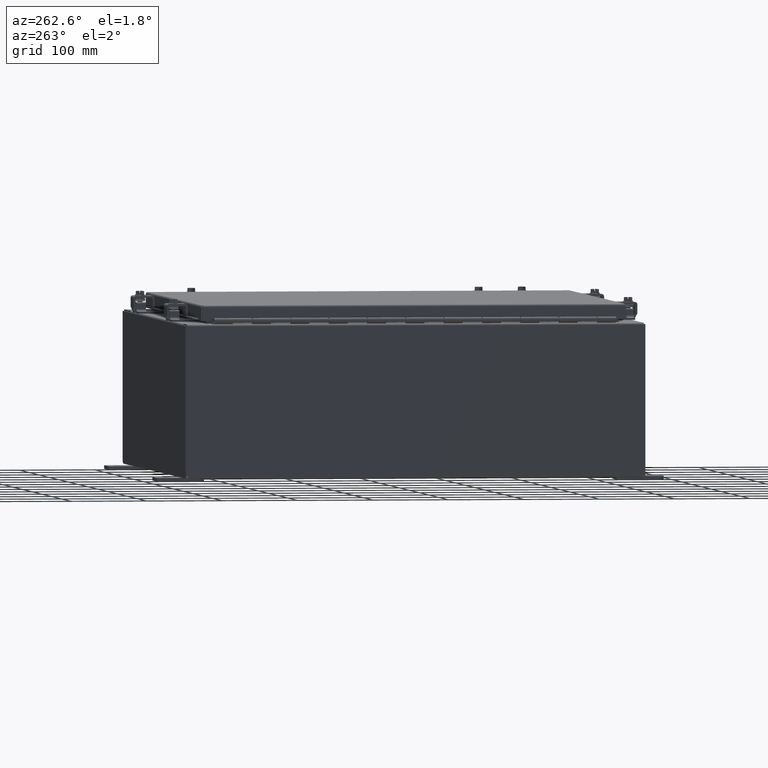
[diagram: clean part render]
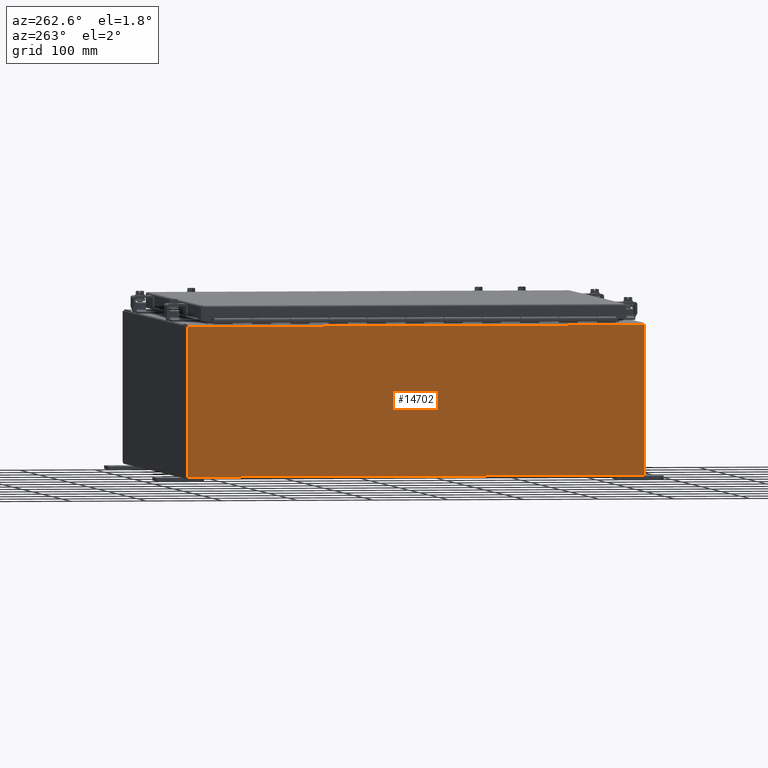
[diagram: same view with one face highlighted and labeled with its STEP entity id]
A machine part, auxiliary view. The second image highlights one B-rep face of the part: STEP entity #14702.
In plain terms, the highlighted planar face has unit normal (1, 0, 0).
Its self-contained STEP definition (entity closure, byte-faithful):
#663=PLANE('',#15710);
#1246=FACE_OUTER_BOUND('',#2112,.T.);
#2112=EDGE_LOOP('',(#10633,#10634,#10635,#10636,#10637,#10638));
#3186=LINE('',#22112,#4575);
#3191=LINE('',#22127,#4580);
#3193=LINE('',#22132,#4582);
#3194=LINE('',#22137,#4583);
#4575=VECTOR('',#17917,7.76471061021219);
#4580=VECTOR('',#17930,7.76471061021219);
#4582=VECTOR('',#17938,23.842);
#4583=VECTOR('',#17943,23.7655336786487);
#5735=CIRCLE('',#15711,0.07);
#5736=CIRCLE('',#15712,0.07);
#6529=VERTEX_POINT('',#22109);
#6530=VERTEX_POINT('',#22111);
#6535=VERTEX_POINT('',#22124);
#6536=VERTEX_POINT('',#22126);
#6537=VERTEX_POINT('',#22134);
#6538=VERTEX_POINT('',#22136);
#8069=EDGE_CURVE('',#6529,#6530,#3186,.T.);
#8076=EDGE_CURVE('',#6535,#6536,#3191,.T.);
#8079=EDGE_CURVE('',#6529,#6536,#3193,.T.);
#8080=EDGE_CURVE('',#6535,#6537,#5735,.T.);
#8081=EDGE_CURVE('',#6537,#6538,#3194,.T.);
#8082=EDGE_CURVE('',#6538,#6530,#5736,.T.);
#10633=ORIENTED_EDGE('',*,*,#8079,.T.);
#10634=ORIENTED_EDGE('',*,*,#8076,.F.);
#10635=ORIENTED_EDGE('',*,*,#8080,.T.);
#10636=ORIENTED_EDGE('',*,*,#8081,.T.);
#10637=ORIENTED_EDGE('',*,*,#8082,.T.);
#10638=ORIENTED_EDGE('',*,*,#8069,.F.);
#14702=ADVANCED_FACE('',(#1246),#663,.F.);
#15710=AXIS2_PLACEMENT_3D('',#22133,#17939,#17940);
#15711=AXIS2_PLACEMENT_3D('',#22135,#17941,#17942);
#15712=AXIS2_PLACEMENT_3D('',#22138,#17944,#17945);
#17917=DIRECTION('',(2.22044604925031E-16,2.71325615707723E-16,-1.));
#17930=DIRECTION('',(-2.83276944882399E-16,-9.86076131526265E-32,1.));
#17938=DIRECTION('',(-3.06161699786838E-16,1.,3.51993835942313E-16));
#17939=DIRECTION('center_axis',(1.,3.06161699786838E-16,2.82762664738643E-16));
#17940=DIRECTION('ref_axis',(2.82762664738643E-16,0.,-1.));
#17941=DIRECTION('center_axis',(1.,3.06161699786838E-16,2.82762664738643E-16));
#17942=DIRECTION('ref_axis',(2.83276944882399E-16,-3.06161699786838E-16,
-1.));
#17943=DIRECTION('',(3.06161699786838E-16,-1.,-4.71801234118532E-49));
#17944=DIRECTION('center_axis',(1.,3.06161699786838E-16,2.82762664738643E-16));
#17945=DIRECTION('ref_axis',(2.83276944882399E-16,-3.06161699786838E-16,
-1.));
#22109=CARTESIAN_POINT('',(-2.29475231467798E-15,0.0790000000000109,7.89474999999999));
#22111=CARTESIAN_POINT('',(-4.7691145608056E-17,0.078999999999994,0.130039389787803));
#22112=CARTESIAN_POINT('',(-1.36392205130458E-17,0.0789999999999941,-0.0673176844616874));
#22124=CARTESIAN_POINT('',(-7.34719839192586E-15,23.921,0.130039389787806));
#22126=CARTESIAN_POINT('',(-9.59425015374889E-15,23.921,7.89475));
#22127=CARTESIAN_POINT('',(-7.35110352129593E-15,23.921,0.105250000000007));
#22132=CARTESIAN_POINT('',(-4.08138090253441E-15,6.0395,7.89474999999999));
#22133=CARTESIAN_POINT('Origin',(-4.7968478698716E-15,12.,3.97248307888458));
#22134=CARTESIAN_POINT('',(-7.33938689831855E-15,23.8827668393244,0.10525));
#22135=CARTESIAN_POINT('Origin',(-7.34405406896736E-15,23.9378919211154,
0.0621080788845854));
#22136=CARTESIAN_POINT('',(-6.32907109221064E-17,0.117233160675635,0.10525));
#22137=CARTESIAN_POINT('',(-3.70134989813702E-15,12.,0.10525));
#22138=CARTESIAN_POINT('Origin',(-3.42035040868303E-17,0.0621080788845781,
0.0621080788845781));